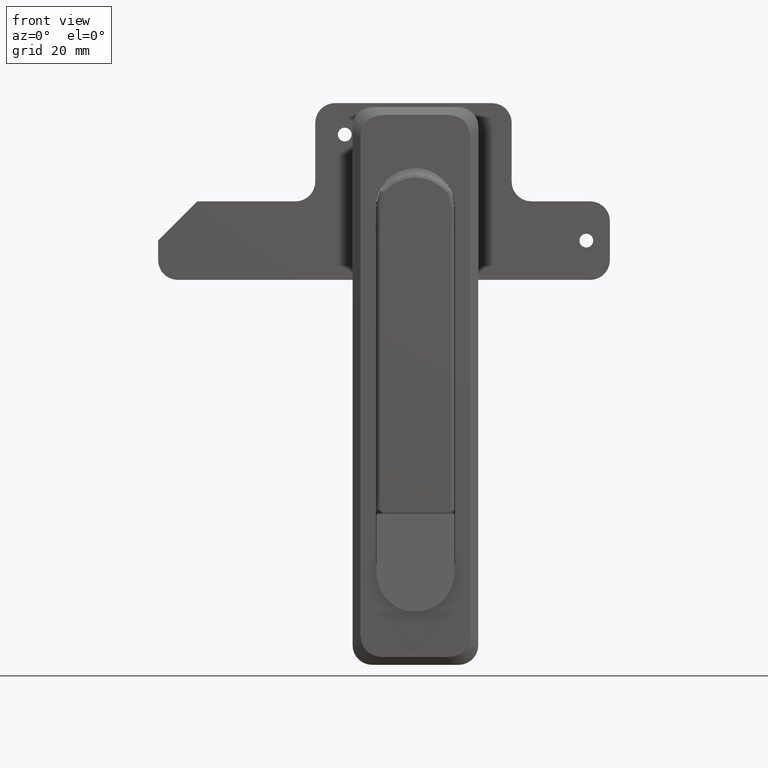
[diagram: clean part render]
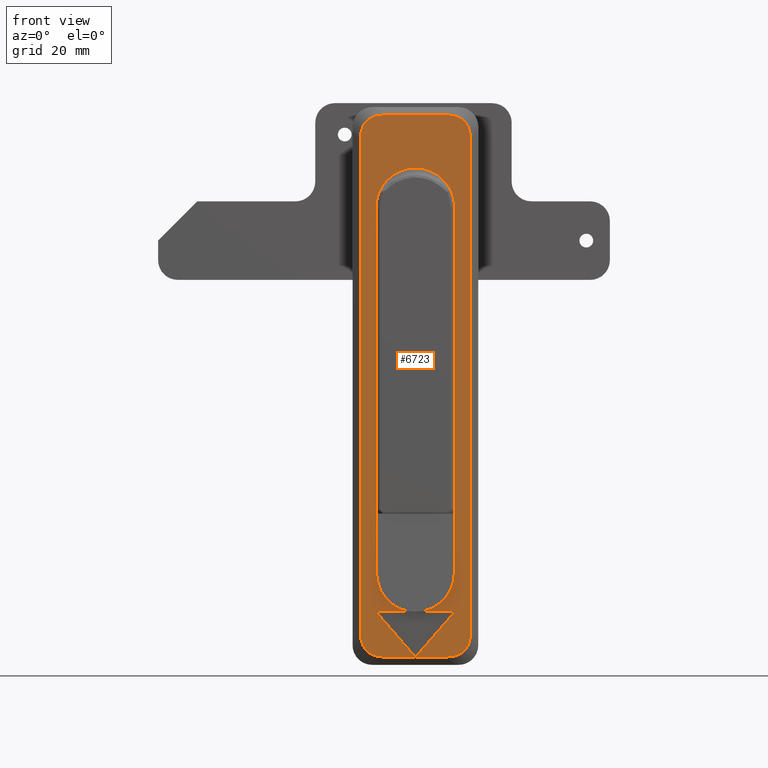
[diagram: same view with one face highlighted and labeled with its STEP entity id]
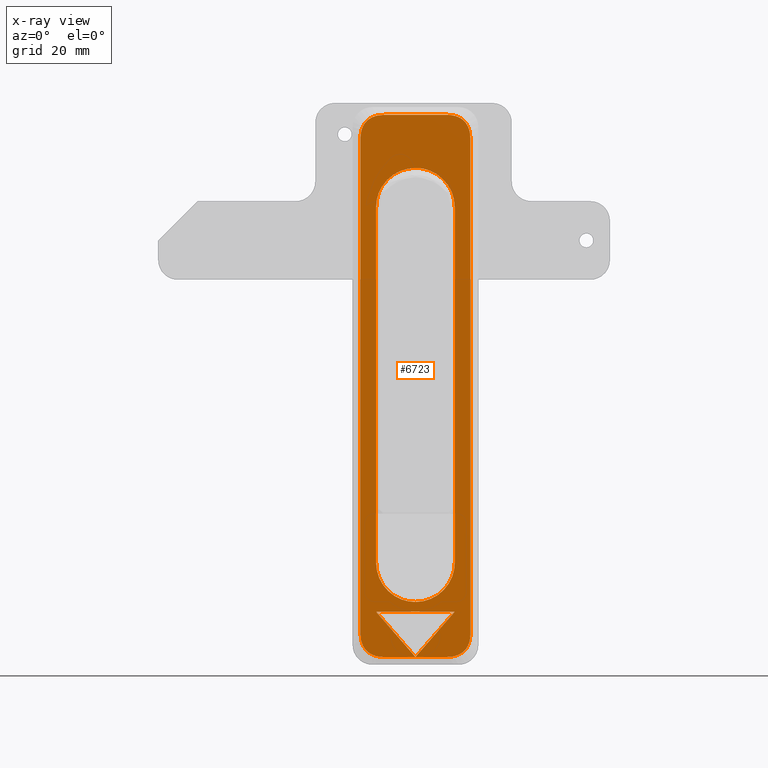
[diagram: x-ray of the same camera — body ghosted, the highlighted face saturated]
A machine part, front view. The second image highlights one B-rep face of the part: STEP entity #6723.
The next image is the same camera in x-ray: the body ghosted, the highlighted face saturated — about 0% of this face is hidden behind the body in this view.
In plain terms, the highlighted face is a freeform B-spline surface patch.
Its self-contained STEP definition (entity closure, byte-faithful):
#6521=CARTESIAN_POINT('',(-2.999999999999800,-15.398599945730570,11.893099732529221));
#6522=CARTESIAN_POINT('',(-2.999999999999800,-15.398599945730570,-139.893103433977700));
#6523=CARTESIAN_POINT('',(-2.999999999999800,15.398600696749090,11.893099732529221));
#6524=CARTESIAN_POINT('',(-2.999999999999800,15.398600696749090,-139.893103433977700));
#6525=B_SPLINE_SURFACE_WITH_KNOTS('',1,1,((#6521,#6523),(#6522,#6524)),.UNSPECIFIED.,.F.,.F.,.U.,(2,2),(2,2),(0.0,151.786203166506910),(0.0,30.797200642479670),.UNSPECIFIED.);
#6526=CARTESIAN_POINT('',(-2.999999999999800,-7.999999999999900,5.0));
#6527=VERTEX_POINT('',#6526);
#6528=CARTESIAN_POINT('',(-2.999999999999800,8.0,5.0));
#6529=VERTEX_POINT('',#6528);
#6530=CARTESIAN_POINT('',(-2.999999999999800,-7.999999999999900,5.0));
#6531=CARTESIAN_POINT('',(-2.999999999999800,8.0,5.0));
#6532=QUASI_UNIFORM_CURVE('',1,(#6530,#6531),.UNSPECIFIED.,.F.,.U.);
#6533=EDGE_CURVE('',#6527,#6529,#6532,.T.);
#6534=ORIENTED_EDGE('',*,*,#6533,.T.);
#6535=CARTESIAN_POINT('',(-2.999999999999805,14.0,-1.0));
#6536=VERTEX_POINT('',#6535);
#6537=CARTESIAN_POINT('',(-2.999999999999800,8.0,5.0));
#6538=CARTESIAN_POINT('',(-2.999999999999781,14.000000000000286,5.000000000000130));
#6539=CARTESIAN_POINT('',(-2.999999999999805,14.0,-1.0));
#6547=(BOUNDED_CURVE()B_SPLINE_CURVE(2,(#6537,#6538,#6539),.UNSPECIFIED.,.F.,.U.)CURVE()GEOMETRIC_REPRESENTATION_ITEM()QUASI_UNIFORM_CURVE()RATIONAL_B_SPLINE_CURVE((1.0,0.905538513813738,1.0))REPRESENTATION_ITEM(''));
#6548=EDGE_CURVE('',#6529,#6536,#6547,.T.);
#6549=ORIENTED_EDGE('',*,*,#6548,.T.);
#6550=CARTESIAN_POINT('',(-2.999999999999805,14.0,-127.0));
#6551=VERTEX_POINT('',#6550);
#6552=CARTESIAN_POINT('',(-2.999999999999805,14.0,-127.0));
#6553=CARTESIAN_POINT('',(-2.999999999999805,14.0,-1.0));
#6554=QUASI_UNIFORM_CURVE('',1,(#6552,#6553),.UNSPECIFIED.,.F.,.U.);
#6555=EDGE_CURVE('',#6551,#6536,#6554,.T.);
#6556=ORIENTED_EDGE('',*,*,#6555,.F.);
#6557=CARTESIAN_POINT('',(-2.999999999999800,8.000000000000119,-133.0));
#6558=VERTEX_POINT('',#6557);
#6559=CARTESIAN_POINT('',(-2.999999999999780,14.000000000000060,-127.000000000000100));
#6560=CARTESIAN_POINT('',(-2.999999999999780,13.999999999999950,-132.999999999999940));
#6561=CARTESIAN_POINT('',(-2.999999999999780,7.999999999999976,-132.999999999999890));
#6569=(BOUNDED_CURVE()B_SPLINE_CURVE(2,(#6559,#6560,#6561),.UNSPECIFIED.,.F.,.U.)CURVE()GEOMETRIC_REPRESENTATION_ITEM()QUASI_UNIFORM_CURVE()RATIONAL_B_SPLINE_CURVE((1.0,0.905538513813744,1.0))REPRESENTATION_ITEM(''));
#6570=EDGE_CURVE('',#6551,#6558,#6569,.T.);
#6571=ORIENTED_EDGE('',*,*,#6570,.T.);
#6572=CARTESIAN_POINT('',(-2.999999999999800,-1.110223E-013,-133.0));
#6573=VERTEX_POINT('',#6572);
#6574=CARTESIAN_POINT('',(-2.999999999999800,-1.110223E-013,-133.0));
#6575=CARTESIAN_POINT('',(-2.999999999999800,8.000000000000119,-133.0));
#6576=QUASI_UNIFORM_CURVE('',1,(#6574,#6575),.UNSPECIFIED.,.F.,.U.);
#6577=EDGE_CURVE('',#6573,#6558,#6576,.T.);
#6578=ORIENTED_EDGE('',*,*,#6577,.F.);
#6579=CARTESIAN_POINT('',(-2.999999999999780,10.0,-121.500000000000000));
#6580=VERTEX_POINT('',#6579);
#6581=CARTESIAN_POINT('',(-2.999999999999800,-1.110223E-013,-133.0));
#6582=CARTESIAN_POINT('',(-2.999999999999780,10.0,-121.500000000000000));
#6583=QUASI_UNIFORM_CURVE('',1,(#6581,#6582),.UNSPECIFIED.,.F.,.U.);
#6584=EDGE_CURVE('',#6573,#6580,#6583,.T.);
#6585=ORIENTED_EDGE('',*,*,#6584,.T.);
#6586=CARTESIAN_POINT('',(-2.999999999999780,-10.0,-121.500000000000000));
#6587=VERTEX_POINT('',#6586);
#6588=CARTESIAN_POINT('',(-2.999999999999780,10.0,-121.500000000000000));
#6589=CARTESIAN_POINT('',(-2.999999999999780,-10.0,-121.500000000000000));
#6590=QUASI_UNIFORM_CURVE('',1,(#6588,#6589),.UNSPECIFIED.,.F.,.U.);
#6591=EDGE_CURVE('',#6580,#6587,#6590,.T.);
#6592=ORIENTED_EDGE('',*,*,#6591,.T.);
#6593=CARTESIAN_POINT('',(-2.999999999999780,-10.0,-121.500000000000000));
#6594=CARTESIAN_POINT('',(-2.999999999999800,-1.110223E-013,-133.0));
#6595=QUASI_UNIFORM_CURVE('',1,(#6593,#6594),.UNSPECIFIED.,.F.,.U.);
#6596=EDGE_CURVE('',#6587,#6573,#6595,.T.);
#6597=ORIENTED_EDGE('',*,*,#6596,.T.);
#6598=CARTESIAN_POINT('',(-2.999999999999800,-8.0,-133.0));
#6599=VERTEX_POINT('',#6598);
#6600=CARTESIAN_POINT('',(-2.999999999999800,-8.0,-133.0));
#6601=CARTESIAN_POINT('',(-2.999999999999800,-1.110223E-013,-133.0));
#6602=QUASI_UNIFORM_CURVE('',1,(#6600,#6601),.UNSPECIFIED.,.F.,.U.);
#6603=EDGE_CURVE('',#6599,#6573,#6602,.T.);
#6604=ORIENTED_EDGE('',*,*,#6603,.F.);
#6605=CARTESIAN_POINT('',(-2.999999999999800,-14.0,-127.0));
#6606=VERTEX_POINT('',#6605);
#6607=CARTESIAN_POINT('',(-2.999999999999780,-8.000000000000078,-133.000000000000110));
#6608=CARTESIAN_POINT('',(-2.999999999999780,-14.000000000000187,-133.000000000000090));
#6609=CARTESIAN_POINT('',(-2.999999999999780,-14.000000000000041,-127.0));
#6617=(BOUNDED_CURVE()B_SPLINE_CURVE(2,(#6607,#6608,#6609),.UNSPECIFIED.,.F.,.U.)CURVE()GEOMETRIC_REPRESENTATION_ITEM()QUASI_UNIFORM_CURVE()RATIONAL_B_SPLINE_CURVE((1.0,0.905538513813742,1.0))REPRESENTATION_ITEM(''));
#6618=EDGE_CURVE('',#6599,#6606,#6617,.T.);
#6619=ORIENTED_EDGE('',*,*,#6618,.T.);
#6620=CARTESIAN_POINT('',(-2.999999999999800,-14.0,-0.999999999999890));
#6621=VERTEX_POINT('',#6620);
#6622=CARTESIAN_POINT('',(-2.999999999999800,-14.0,-127.0));
#6623=CARTESIAN_POINT('',(-2.999999999999800,-14.0,-0.999999999999890));
#6624=QUASI_UNIFORM_CURVE('',1,(#6622,#6623),.UNSPECIFIED.,.F.,.U.);
#6625=EDGE_CURVE('',#6606,#6621,#6624,.T.);
#6626=ORIENTED_EDGE('',*,*,#6625,.T.);
#6627=CARTESIAN_POINT('',(-2.999999999999780,-13.999999999999989,-0.999999999999888));
#6628=CARTESIAN_POINT('',(-2.999999999999781,-13.999999999999970,5.000000000000048));
#6629=CARTESIAN_POINT('',(-2.999999999999800,-7.999999999999900,5.0));
#6637=(BOUNDED_CURVE()B_SPLINE_CURVE(2,(#6627,#6628,#6629),.UNSPECIFIED.,.F.,.U.)CURVE()GEOMETRIC_REPRESENTATION_ITEM()QUASI_UNIFORM_CURVE()RATIONAL_B_SPLINE_CURVE((1.0,0.905538513813742,1.0))REPRESENTATION_ITEM(''));
#6638=EDGE_CURVE('',#6621,#6527,#6637,.T.);
#6639=ORIENTED_EDGE('',*,*,#6638,.T.);
#6640=EDGE_LOOP('',(#6534,#6549,#6556,#6571,#6578,#6585,#6592,#6597,#6604,#6619,#6626,#6639));
#6641=FACE_OUTER_BOUND('',#6640,.T.);
#6642=CARTESIAN_POINT('',(-2.999999999999780,10.0,-18.500000000000000));
#6643=VERTEX_POINT('',#6642);
#6644=CARTESIAN_POINT('',(-2.999999999999780,10.0,-109.0));
#6645=VERTEX_POINT('',#6644);
#6646=CARTESIAN_POINT('',(-2.999999999999780,10.0,-18.500000000000000));
#6647=CARTESIAN_POINT('',(-2.999999999999780,10.0,-109.0));
#6648=QUASI_UNIFORM_CURVE('',1,(#6646,#6647),.UNSPECIFIED.,.F.,.U.);
#6649=EDGE_CURVE('',#6643,#6645,#6648,.T.);
#6650=ORIENTED_EDGE('',*,*,#6649,.F.);
#6651=CARTESIAN_POINT('',(-2.999999999999780,0.000001359381673,-8.500000000000091));
#6652=VERTEX_POINT('',#6651);
#6653=CARTESIAN_POINT('',(-2.999999999999780,0.000001359381673,-8.500000000000091));
#6654=CARTESIAN_POINT('',(-2.999999999999781,0.695405113020053,-8.499890884416741));
#6655=CARTESIAN_POINT('',(-2.999999999999786,1.840723521757660,-8.619981681269733));
#6656=CARTESIAN_POINT('',(-2.999999999999777,3.536928010291443,-9.100617391720864));
#6657=CARTESIAN_POINT('',(-2.999999999999778,5.250229184311544,-9.897892603354793));
#6658=CARTESIAN_POINT('',(-2.999999999999810,6.890196154585705,-11.145715920935610));
#6659=CARTESIAN_POINT('',(-2.999999999999751,8.248789926782090,-12.740577787223630));
#6660=CARTESIAN_POINT('',(-2.999999999999816,9.282215145802638,-14.564478272512799));
#6661=CARTESIAN_POINT('',(-2.999999999999731,9.880363863997024,-16.536483617680620));
#6662=CARTESIAN_POINT('',(-2.999999999999813,10.000015798996101,-17.927332833197440));
#6663=CARTESIAN_POINT('',(-2.999999999999780,10.0,-18.500000000000000));
#6664=B_SPLINE_CURVE_WITH_KNOTS('',3,(#6653,#6654,#6655,#6656,#6657,#6658,#6659,#6660,#6661,#6662,#6663),.UNSPECIFIED.,.F.,.U.,(4,1,1,1,1,1,1,1,4),(0.000000162239338,2.086194494955818,3.436129774909039,5.276951132650796,7.731359155489762,9.572062347464129,11.535606646087500,13.990029322106730,15.708061062583949),.UNSPECIFIED.);
#6665=EDGE_CURVE('',#6652,#6643,#6664,.T.);
#6666=ORIENTED_EDGE('',*,*,#6665,.F.);
#6667=CARTESIAN_POINT('',(-2.999999999999780,-10.0,-18.500000000000000));
#6668=VERTEX_POINT('',#6667);
#6669=CARTESIAN_POINT('',(-2.999999999999780,-10.0,-18.500000000000000));
#6670=CARTESIAN_POINT('',(-2.999999999999783,-10.000107092846850,-17.804597239201659));
#6671=CARTESIAN_POINT('',(-2.999999999999775,-9.862900206470213,-16.495647051275231));
#6672=CARTESIAN_POINT('',(-2.999999999999784,-9.278992656118568,-14.612241407087120));
#6673=CARTESIAN_POINT('',(-2.999999999999783,-8.484522838833820,-13.125984383899530));
#6674=CARTESIAN_POINT('',(-2.999999999999782,-7.491856257436798,-11.821357246097380));
#6675=CARTESIAN_POINT('',(-2.999999999999771,-6.463361070665783,-10.817792987792551));
#6676=CARTESIAN_POINT('',(-2.999999999999780,-5.128366611833941,-9.865284568309100));
#6677=CARTESIAN_POINT('',(-2.999999999999794,-3.619343389152860,-9.117185117231337));
#6678=CARTESIAN_POINT('',(-2.999999999999759,-1.840751802060753,-8.613301495908560));
#6679=CARTESIAN_POINT('',(-2.999999999999804,-0.613588886021535,-8.499937709097489));
#6680=CARTESIAN_POINT('',(-2.999999999999780,0.000001359381673,-8.500000000000091));
#6681=B_SPLINE_CURVE_WITH_KNOTS('',3,(#6669,#6670,#6671,#6672,#6673,#6674,#6675,#6676,#6677,#6678,#6679,#6680),.UNSPECIFIED.,.F.,.U.,(4,1,1,1,1,1,1,1,1,4),(0.000000161767813,2.086194698070397,3.927016042206887,5.890538110251004,7.117770844883339,8.835779886404115,10.185690692500200,12.026486197124090,13.867290917783970,15.708062594933519),.UNSPECIFIED.);
#6682=EDGE_CURVE('',#6668,#6652,#6681,.T.);
#6683=ORIENTED_EDGE('',*,*,#6682,.F.);
#6684=CARTESIAN_POINT('',(-2.999999999999780,-10.0,-109.0));
#6685=VERTEX_POINT('',#6684);
#6686=CARTESIAN_POINT('',(-2.999999999999780,-10.0,-109.0));
#6687=CARTESIAN_POINT('',(-2.999999999999780,-10.0,-18.500000000000000));
#6688=QUASI_UNIFORM_CURVE('',1,(#6686,#6687),.UNSPECIFIED.,.F.,.U.);
#6689=EDGE_CURVE('',#6685,#6668,#6688,.T.);
#6690=ORIENTED_EDGE('',*,*,#6689,.F.);
#6691=CARTESIAN_POINT('',(-2.999999999999780,-0.000001359381683,-118.999999999999900));
#6692=VERTEX_POINT('',#6691);
#6693=CARTESIAN_POINT('',(-2.999999999999780,-0.000001359381683,-118.999999999999900));
#6694=CARTESIAN_POINT('',(-2.999999999999773,-0.695397243109854,-119.000088393549310));
#6695=CARTESIAN_POINT('',(-2.999999999999789,-2.208920186894831,-118.841577880421200));
#6696=CARTESIAN_POINT('',(-2.999999999999773,-4.235544447742492,-118.144503086800500));
#6697=CARTESIAN_POINT('',(-2.999999999999781,-5.850286793287618,-117.162837666764200));
#6698=CARTESIAN_POINT('',(-2.999999999999799,-7.286028638178852,-115.939878760516710));
#6699=CARTESIAN_POINT('',(-2.999999999999722,-8.522191743786886,-114.395353177272800));
#6700=CARTESIAN_POINT('',(-2.999999999999853,-9.412713276507921,-112.541700814782400));
#6701=CARTESIAN_POINT('',(-2.999999999999683,-9.894243811266813,-110.758931023593410));
#6702=CARTESIAN_POINT('',(-2.999999999999856,-10.000054689439111,-109.613590823856300));
#6703=CARTESIAN_POINT('',(-2.999999999999780,-10.0,-109.0));
#6704=B_SPLINE_CURVE_WITH_KNOTS('',3,(#6693,#6694,#6695,#6696,#6697,#6698,#6699,#6700,#6701,#6702,#6703),.UNSPECIFIED.,.F.,.U.,(4,1,1,1,1,1,1,1,4),(0.000000162215880,2.086194494937674,4.540615519661829,6.381409217072941,7.731359155483166,10.185689697988201,12.271931510412569,13.867289564421521,15.708061062583971),.UNSPECIFIED.);
#6705=EDGE_CURVE('',#6692,#6685,#6704,.T.);
#6706=ORIENTED_EDGE('',*,*,#6705,.F.);
#6707=CARTESIAN_POINT('',(-2.999999999999780,10.0,-109.0));
#6708=CARTESIAN_POINT('',(-2.999999999999786,10.000022595540420,-109.531766019084100));
#6709=CARTESIAN_POINT('',(-2.999999999999775,9.908461014718840,-110.677134973854810));
#6710=CARTESIAN_POINT('',(-2.999999999999772,9.448364562451483,-112.467551740192800));
#6711=CARTESIAN_POINT('',(-2.999999999999804,8.522167627679975,-114.395344422967700));
#6712=CARTESIAN_POINT('',(-2.999999999999778,7.234551119285993,-116.004256833264090));
#6713=CARTESIAN_POINT('',(-2.999999999999753,5.845675162291951,-117.158095301520700));
#6714=CARTESIAN_POINT('',(-2.999999999999835,4.444240743578489,-118.009881279362700));
#6715=CARTESIAN_POINT('',(-2.999999999999722,2.536031226288047,-118.773164263786100));
#6716=CARTESIAN_POINT('',(-2.999999999999811,0.940870884013569,-119.000336264143300));
#6717=CARTESIAN_POINT('',(-2.999999999999780,-0.000001359381683,-118.999999999999900));
#6718=B_SPLINE_CURVE_WITH_KNOTS('',3,(#6707,#6708,#6709,#6710,#6711,#6712,#6713,#6714,#6715,#6716,#6717),.UNSPECIFIED.,.F.,.U.,(4,1,1,1,1,1,1,1,4),(0.000000161704001,1.595310531343809,3.436130109645083,5.522374828507488,7.976702451281948,9.572063281763244,10.921997255843641,12.885522897124771,15.708062594933759),.UNSPECIFIED.);
#6719=EDGE_CURVE('',#6645,#6692,#6718,.T.);
#6720=ORIENTED_EDGE('',*,*,#6719,.F.);
#6721=EDGE_LOOP('',(#6650,#6666,#6683,#6690,#6706,#6720));
#6722=FACE_BOUND('',#6721,.T.);
#6723=ADVANCED_FACE('',(#6641,#6722),#6525,.F.);